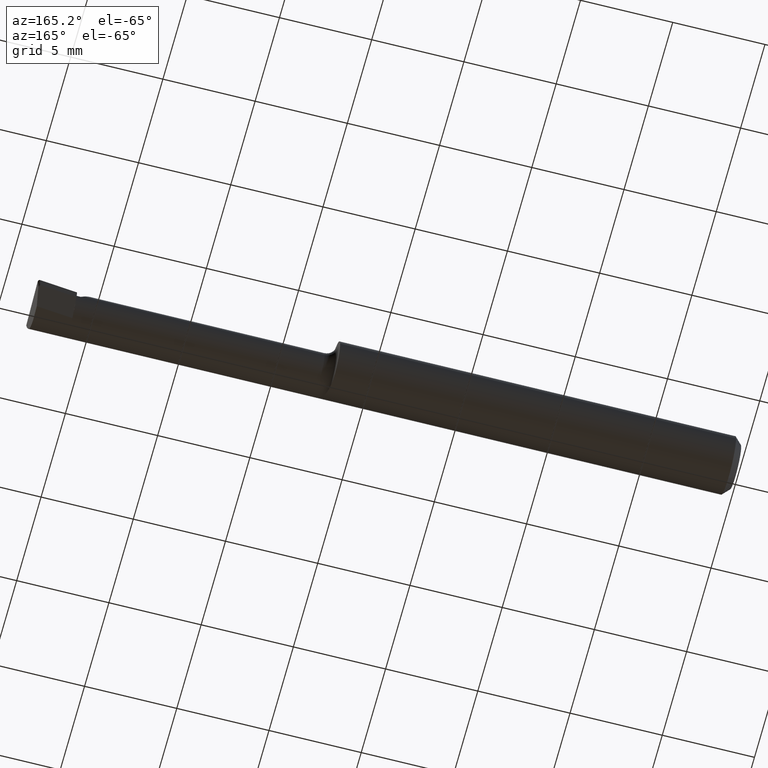
[diagram: clean part render]
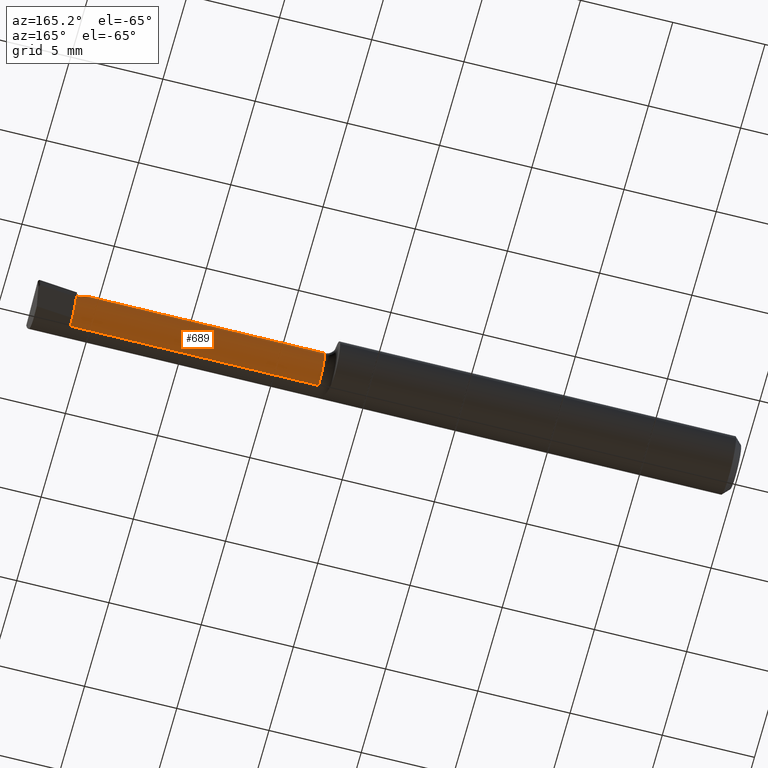
[diagram: same view with one face highlighted and labeled with its STEP entity id]
A machine part, auxiliary view. The second image highlights one B-rep face of the part: STEP entity #689.
In plain terms, the highlighted cylindrical surface (edge-blend (fillet) strip) has radius 1.2205 mm, axis along (-1, -0, -0).
Its self-contained STEP definition (entity closure, byte-faithful):
#12 = CIRCLE ( 'NONE', #53, 0.04805000000000000243 ) ;
#24 = CYLINDRICAL_SURFACE ( 'NONE', #710, 0.04804999999999996774 ) ;
#29 = DIRECTION ( 'NONE',  ( -1.000000000000000000, -0.0000000000000000000, -0.0000000000000000000 ) ) ;
#31 = VERTEX_POINT ( 'NONE', #773 ) ;
#34 = CARTESIAN_POINT ( 'NONE',  ( 0.0000000000000000000, -0.01839999999999999275, -0.04804999999999996774 ) ) ;
#42 = CIRCLE ( 'NONE', #777, 0.04804999999999993304 ) ;
#53 = AXIS2_PLACEMENT_3D ( 'NONE', #312, #739, #381 ) ;
#65 = DIRECTION ( 'NONE',  ( 0.0000000000000000000, 0.0000000000000000000, 1.000000000000000000 ) ) ;
#66 = VERTEX_POINT ( 'NONE', #358 ) ;
#77 = ORIENTED_EDGE ( 'NONE', *, *, #278, .T. ) ;
#90 = CARTESIAN_POINT ( 'NONE',  ( 1.405000000000000249, 0.02964999999999991601, 1.163414459189982046E-17 ) ) ;
#106 = VECTOR ( 'NONE', #409, 39.37007874015748143 ) ;
#116 = ORIENTED_EDGE ( 'NONE', *, *, #161, .F. ) ;
#125 = VERTEX_POINT ( 'NONE', #266 ) ;
#161 = EDGE_CURVE ( 'NONE', #514, #66, #559, .T. ) ;
#174 = CARTESIAN_POINT ( 'NONE',  ( 1.405000000000000249, 0.02964999999999991601, 1.163414459189982046E-17 ) ) ;
#199 = CARTESIAN_POINT ( 'NONE',  ( 1.376852961672026865, 0.02964999999999996805, 0.02814703832797276276 ) ) ;
#205 = FACE_OUTER_BOUND ( 'NONE', #401, .T. ) ;
#225 = CARTESIAN_POINT ( 'NONE',  ( 1.415000000000000036, 0.007456147106387353563, -0.04050015008383121146 ) ) ;
#227 = VECTOR ( 'NONE', #599, 39.37007874015748143 ) ;
#245 = VERTEX_POINT ( 'NONE', #603 ) ;
#253 = ORIENTED_EDGE ( 'NONE', *, *, #263, .T. ) ;
#263 = EDGE_CURVE ( 'NONE', #125, #31, #291, .T. ) ;
#266 = CARTESIAN_POINT ( 'NONE',  ( 1.415000000000000036, -0.01839999999999999969, -0.04804999999999998855 ) ) ;
#271 = VERTEX_POINT ( 'NONE', #225 ) ;
#278 = EDGE_CURVE ( 'NONE', #383, #245, #571, .T. ) ;
#291 = LINE ( 'NONE', #34, #106 ) ;
#305 = CARTESIAN_POINT ( 'NONE',  ( 1.356949999999999878, -0.01839999999999999969, 0.04804999999999996774 ) ) ;
#312 = CARTESIAN_POINT ( 'NONE',  ( 1.415000000000000036, -0.01839999999999999969, 0.0000000000000000000 ) ) ;
#335 = ORIENTED_EDGE ( 'NONE', *, *, #774, .T. ) ;
#357 = ORIENTED_EDGE ( 'NONE', *, *, #485, .F. ) ;
#358 = CARTESIAN_POINT ( 'NONE',  ( 0.8850000000000001199, -0.01839999999999999969, 0.04804999999999993304 ) ) ;
#379 = CARTESIAN_POINT ( 'NONE',  ( 1.415000000000000036, 0.02286474879319028847, -0.02461753454420034445 ) ) ;
#381 = DIRECTION ( 'NONE',  ( 0.0000000000000000000, 0.0000000000000000000, 1.000000000000000000 ) ) ;
#383 = VERTEX_POINT ( 'NONE', #90 ) ;
#401 = EDGE_LOOP ( 'NONE', ( #643, #253, #722, #116, #335, #77, #470, #357 ) ) ;
#405 = CIRCLE ( 'NONE', #444, 0.04805000000000000243 ) ;
#408 = EDGE_CURVE ( 'NONE', #245, #570, #405, .T. ) ;
#409 = DIRECTION ( 'NONE',  ( -1.000000000000000000, -0.0000000000000000000, -0.0000000000000000000 ) ) ;
#435 = DIRECTION ( 'NONE',  ( 1.000000000000000000, 0.0000000000000000000, 0.0000000000000000000 ) ) ;
#444 = AXIS2_PLACEMENT_3D ( 'NONE', #705, #29, #525 ) ;
#470 = ORIENTED_EDGE ( 'NONE', *, *, #408, .T. ) ;
#480 = DIRECTION ( 'NONE',  ( 0.0000000000000000000, 0.0000000000000000000, 1.000000000000000000 ) ) ;
#483 = CARTESIAN_POINT ( 'NONE',  ( 0.0000000000000000000, -0.01839999999999999969, 0.0000000000000000000 ) ) ;
#485 = EDGE_CURVE ( 'NONE', #271, #570, #553, .T. ) ;
#503 = DIRECTION ( 'NONE',  ( -1.000000000000000000, -0.0000000000000000000, -0.0000000000000000000 ) ) ;
#514 = VERTEX_POINT ( 'NONE', #305 ) ;
#525 = DIRECTION ( 'NONE',  ( 0.0000000000000000000, 0.0000000000000000000, 1.000000000000000000 ) ) ;
#526 = VECTOR ( 'NONE', #503, 39.37007874015748143 ) ;
#529 =( BOUNDED_CURVE ( )  B_SPLINE_CURVE ( 3, ( #724, #755, #199, #174 ),
 .UNSPECIFIED., .F., .T. ) 
 B_SPLINE_CURVE_WITH_KNOTS ( ( 4, 4 ),
 ( 0.0000000000000000000, 1.570796326794896558 ),
 .UNSPECIFIED. ) 
 CURVE ( )  GEOMETRIC_REPRESENTATION_ITEM ( )  RATIONAL_B_SPLINE_CURVE ( ( 1.000000000000000000, 0.8047378541243649375, 0.8047378541243649375, 1.000000000000000000 ) ) 
 REPRESENTATION_ITEM ( '' )  );
#547 = CARTESIAN_POINT ( 'NONE',  ( 0.8850000000000001199, -0.01839999999999999969, 0.0000000000000000000 ) ) ;
#553 = CIRCLE ( 'NONE', #690, 0.04804999999999996774 ) ;
#559 = LINE ( 'NONE', #633, #526 ) ;
#570 = VERTEX_POINT ( 'NONE', #379 ) ;
#571 = LINE ( 'NONE', #715, #227 ) ;
#574 = EDGE_CURVE ( 'NONE', #271, #125, #12, .T. ) ;
#591 = DIRECTION ( 'NONE',  ( -1.000000000000000000, -0.0000000000000000000, -0.0000000000000000000 ) ) ;
#599 = DIRECTION ( 'NONE',  ( 1.000000000000000000, 0.0000000000000000000, 0.0000000000000000000 ) ) ;
#603 = CARTESIAN_POINT ( 'NONE',  ( 1.415000000000000036, 0.02964999999999999927, 1.836970198721026729E-16 ) ) ;
#633 = CARTESIAN_POINT ( 'NONE',  ( 0.0000000000000000000, -0.01839999999999999969, 0.04804999999999996774 ) ) ;
#643 = ORIENTED_EDGE ( 'NONE', *, *, #574, .T. ) ;
#689 = ADVANCED_FACE ( 'NONE', ( #205 ), #24, .T. ) ;
#690 = AXIS2_PLACEMENT_3D ( 'NONE', #780, #435, #65 ) ;
#705 = CARTESIAN_POINT ( 'NONE',  ( 1.415000000000000036, -0.01839999999999999969, 0.0000000000000000000 ) ) ;
#710 = AXIS2_PLACEMENT_3D ( 'NONE', #483, #717, #480 ) ;
#715 = CARTESIAN_POINT ( 'NONE',  ( 2.249639673992775738E-32, 0.02964999999999995764, 1.836970198721025250E-16 ) ) ;
#717 = DIRECTION ( 'NONE',  ( -1.000000000000000000, -0.0000000000000000000, -0.0000000000000000000 ) ) ;
#722 = ORIENTED_EDGE ( 'NONE', *, *, #728, .F. ) ;
#724 = CARTESIAN_POINT ( 'NONE',  ( 1.356949999999999878, -0.01839999999999999969, 0.04804999999999996774 ) ) ;
#728 = EDGE_CURVE ( 'NONE', #66, #31, #42, .T. ) ;
#739 = DIRECTION ( 'NONE',  ( -1.000000000000000000, -0.0000000000000000000, -0.0000000000000000000 ) ) ;
#755 = CARTESIAN_POINT ( 'NONE',  ( 1.356949999999999656, 0.009747038327972763067, 0.04804999999999996774 ) ) ;
#768 = DIRECTION ( 'NONE',  ( 0.0000000000000000000, 0.0000000000000000000, 1.000000000000000000 ) ) ;
#773 = CARTESIAN_POINT ( 'NONE',  ( 0.8850000000000001199, -0.01839999999999999275, -0.04804999999999993304 ) ) ;
#774 = EDGE_CURVE ( 'NONE', #514, #383, #529, .T. ) ;
#777 = AXIS2_PLACEMENT_3D ( 'NONE', #547, #591, #768 ) ;
#780 = CARTESIAN_POINT ( 'NONE',  ( 1.415000000000000036, -0.01839999999999999969, 0.0000000000000000000 ) ) ;